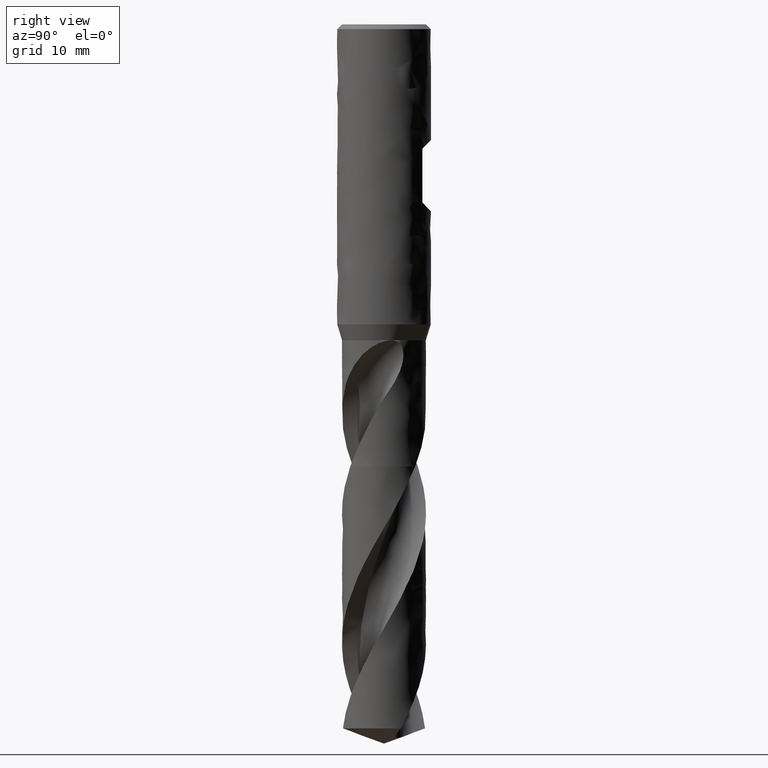
[diagram: clean part render]
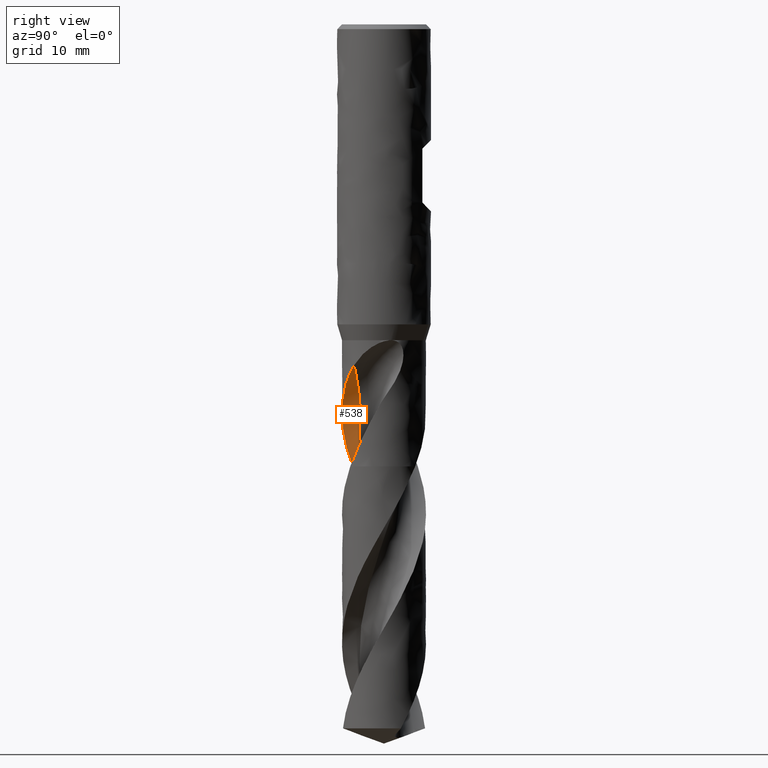
[diagram: same view with one face highlighted and labeled with its STEP entity id]
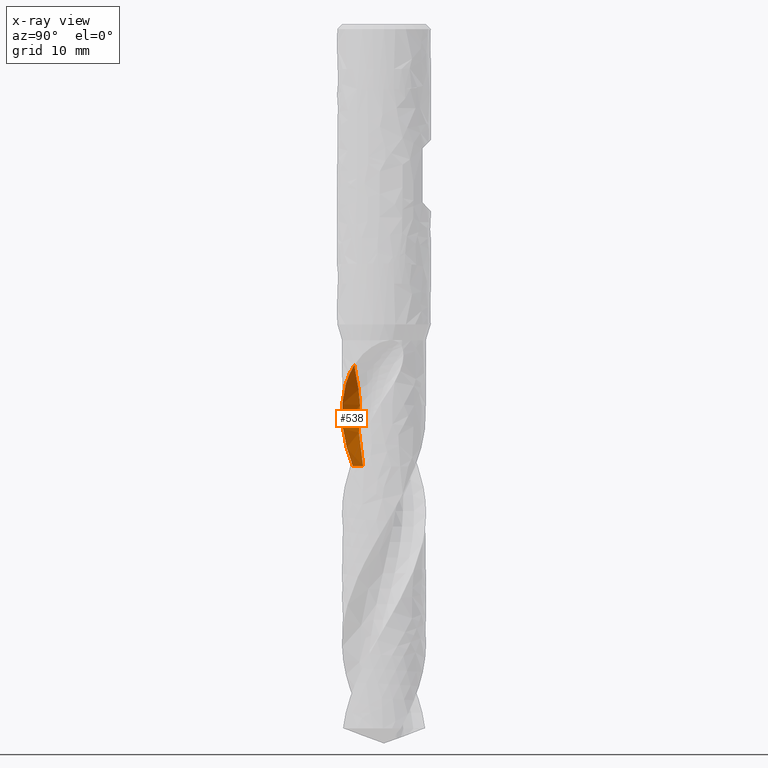
[diagram: x-ray of the same camera — body ghosted, the highlighted face saturated]
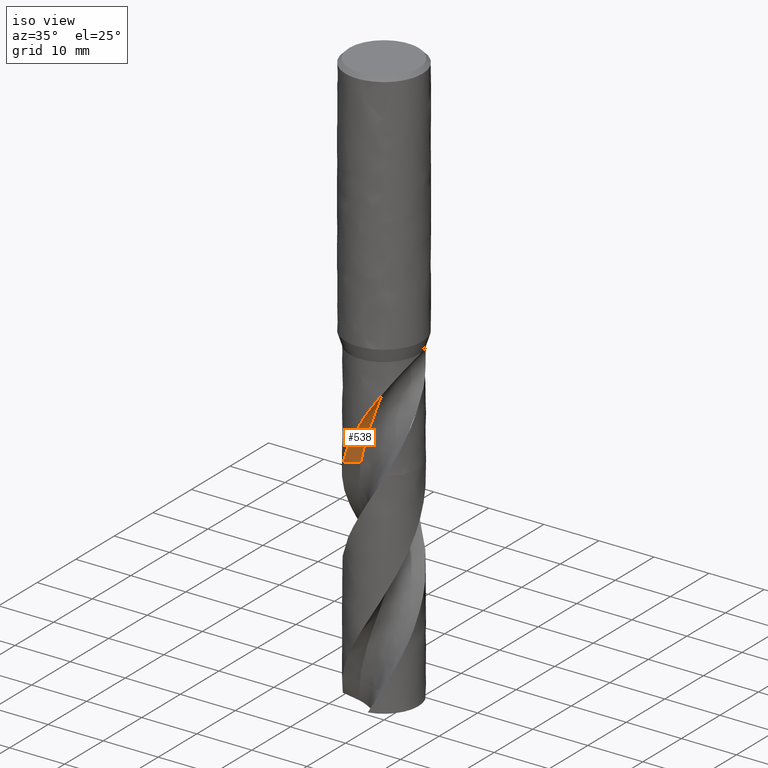
[diagram: same view with one face highlighted and labeled with its STEP entity id]
A machine part, right view. The second image highlights one B-rep face of the part: STEP entity #538.
The next image is the same camera in x-ray: the body ghosted, the highlighted face saturated — about 0% of this face is hidden behind the body in this view.
A second angle (iso view) of the same face is appended — the face is thin or edge-on in the first view.
In plain terms, the highlighted face is a freeform B-spline surface patch.
Its self-contained STEP definition (entity closure, byte-faithful):
#538 = ADVANCED_FACE('', (#539), #697, .T.);
#539 = FACE_OUTER_BOUND('', #540, .T.);
#540 = EDGE_LOOP('', (#541, #551, #573));
#541 = ORIENTED_EDGE('', *, *, #542, .T.);
#542 = EDGE_CURVE('', #543, #545, #547, .T.);
#543 = VERTEX_POINT('', #544);
#544 = CARTESIAN_POINT('', (-4.18466820123788, -4.64231106729703, -65.75));
#545 = VERTEX_POINT('', #546);
#546 = CARTESIAN_POINT('', (-2.0922272303415, -3.10219535097951, -65.75));
#547 = LINE('', #548, #549);
#548 = CARTESIAN_POINT('', (-4.18466820123788, -4.64231106729703, -65.75));
#549 = VECTOR('', #550, 2.59812733258669);
#550 = DIRECTION('', (2.09244097089639, 1.54011571631752, 0.));
#551 = ORIENTED_EDGE('', *, *, #552, .T.);
#552 = EDGE_CURVE('', #545, #553, #555, .T.);
#553 = VERTEX_POINT('', #554);
#554 = CARTESIAN_POINT('', (4.4135304005075, -4.42529653286603, -50.6848049484776));
#555 = (
   BOUNDED_CURVE ()
   B_SPLINE_CURVE (3, (#556, #557, #558, #559, #560, #561, #562, #563, #564, #565, #566, #567, #568, #569, #570, #571, #572), .UNSPECIFIED., .F., .U.)
   B_SPLINE_CURVE_WITH_KNOTS ((4, 1, 1, 1, 1, 1, 1, 1, 1, 1, 1, 1, 1, 1, 4), (41.3, 41.5869230769231, 42.7421153846154, 43.8973076923077, 45.0525, 46.2076923076923, 47.3628846153846, 48.5180769230769, 49.6732692307692, 50.8284615384615, 51.9836538461539, 53.1388461538462, 54.2940384615385, 55.4492307692308, 56.3651950515223), .UNSPECIFIED.)
   CURVE ()
   GEOMETRIC_REPRESENTATION_ITEM ()
   RATIONAL_B_SPLINE_CURVE ((1., 1., 1., 1., 1., 1., 1., 1., 1., 1., 1., 1., 1., 1., 1., 1., 1.))
   REPRESENTATION_ITEM ('')
);
#556 = CARTESIAN_POINT('', (-2.0922272303415, -3.10219535097951, -65.75));
#557 = CARTESIAN_POINT('', (-2.06554942423908, -3.12115905386303, -65.654358974359));
#558 = CARTESIAN_POINT('', (-1.93018815021352, -3.21478000189195, -65.1736538461538));
#559 = CARTESIAN_POINT('', (-1.6752455807374, -3.36780012574401, -64.3078846153846));
#560 = CARTESIAN_POINT('', (-1.31441417489896, -3.53469071851344, -63.1526923076923));
#561 = CARTESIAN_POINT('', (-0.937988385072447, -3.66812183037059, -61.9975));
#562 = CARTESIAN_POINT('', (-0.544360902624704, -3.74196568886855, -60.8423076923077));
#563 = CARTESIAN_POINT('', (-0.14496137939572, -3.74733730855098, -59.6871153846154));
#564 = CARTESIAN_POINT('', (0.248979347820483, -3.6851582318711, -58.5319230769231));
#565 = CARTESIAN_POINT('', (0.619532370399151, -3.56002242035592, -57.3767307692308));
#566 = CARTESIAN_POINT('', (1.01183235132242, -3.57037772915943, -56.2215384615385));
#567 = CARTESIAN_POINT('', (1.46817288082459, -3.66875958628856, -55.0663461538462));
#568 = CARTESIAN_POINT('', (2.02648235005531, -3.84284851864956, -53.9111538461538));
#569 = CARTESIAN_POINT('', (2.7199997199487, -4.0602009164862, -52.7559615384615));
#570 = CARTESIAN_POINT('', (3.51642075924345, -4.26872806181493, -51.6805119059028));
#571 = CARTESIAN_POINT('', (4.1247021756337, -4.38275614506257, -50.9901263759082));
#572 = CARTESIAN_POINT('', (4.4135304005075, -4.42529653286603, -50.6848049484776));
#573 = ORIENTED_EDGE('', *, *, #574, .T.);
#574 = EDGE_CURVE('', #553, #543, #575, .T.);
#575 = B_SPLINE_CURVE_WITH_KNOTS('', 3, (#576, #577, #578, #579, #580, #581, #582, #583, #584, #585, #586, #587, #588, #589, #590, #591, #592, #593, #594, #595, #596, #597, #598, #599, #600, #601, #602, #603, #604, #605, #606, #607, #608, #609, #610, #611, #612, #613, #614, #615, #616, #617, #618, #619, #620, #621, #622, #623, #624, #625, #626, #627, #628, #629, #630, #631, #632, #633, #634, #635, #636, #637, #638, #639, #640, #641, #642, #643, #644, #645, #646, #647, #648, #649, #650, #651, #652, #653, #654, #655, #656, #657, #658, #659, #660, #661, #662, #663, #664, #665, #666, #667, #668, #669, #670, #671, #672, #673, #674, #675, #676, #677, #678, #679, #680, #681, #682, #683, #684, #685, #686, #687, #688, #689, #690, #691, #692, #693, #694, #695, #696), .UNSPECIFIED., .F., .U., (4, 3, 3, 3, 3, 3, 3, 3, 3, 3, 3, 3, 3, 3, 3, 3, 3, 3, 3, 3, 3, 3, 3, 3, 3, 3, 3, 3, 3, 3, 3, 3, 3, 3, 3, 3, 3, 3, 3, 3, 4), (0., 0.442094217102409, 0.884221782139149, 1.32638450955813, 1.76859380647292, 2.21085888108049, 2.65318125785681, 3.09556405156931, 3.53801581026176, 3.98053660197396, 4.42312691282272, 4.86580216289845, 5.30856016175191, 5.60388811504777, 6.26790024671321, 6.71082243623732, 6.90778230081466, 7.35080074715382, 7.79393210363038, 8.08941287020916, 8.22075822196089, 8.5162093299469, 8.5745918552543, 8.87030653031445, 9.16599125973936, 9.46169405667645, 9.59309694629466, 10.2589326032213, 10.9245729907842, 11.5901046126912, 12.2556287494888, 12.9211310634944, 13.3646828253678, 13.6603350629814, 14.3257540164983, 14.7692841419949, 15.2127812983217, 15.8780679946527, 16.3215260503626, 17.3194158393411, 17.8353046004148), .UNSPECIFIED.);
#576 = CARTESIAN_POINT('', (4.4135304005075, -4.42529653286603, -50.6848049484776));
#577 = CARTESIAN_POINT('', (4.34617912555985, -4.49246873190098, -50.7973574595573));
#578 = CARTESIAN_POINT('', (4.27763464695008, -4.55776299801299, -50.9103386371833));
#579 = CARTESIAN_POINT('', (4.20803156785796, -4.62114383285252, -51.0237169749138));
#580 = CARTESIAN_POINT('', (4.13842323848474, -4.68452944861846, -51.1371038649692));
#581 = CARTESIAN_POINT('', (4.06774020091075, -4.74601580462784, -51.2509136801843));
#582 = CARTESIAN_POINT('', (3.99612027712714, -4.80557205031131, -51.3651208724181));
#583 = CARTESIAN_POINT('', (3.92449465741472, -4.86513303249991, -51.4793371475438));
#584 = CARTESIAN_POINT('', (3.85191729997999, -4.92277581902773, -51.5939769480847));
#585 = CARTESIAN_POINT('', (3.77852748705237, -4.97847667761834, -51.7090180155901));
#586 = CARTESIAN_POINT('', (3.70512994455738, -5.03418340273894, -51.8240711994594));
#587 = CARTESIAN_POINT('', (3.63090218520284, -5.0879613905037, -51.9395477224046));
#588 = CARTESIAN_POINT('', (3.55597279838317, -5.13980130522173, -52.0554178385662));
#589 = CARTESIAN_POINT('', (3.48103396040914, -5.19164775872322, -52.171302569906));
#590 = CARTESIAN_POINT('', (3.40537799682252, -5.24156620003254, -52.2876043916214));
#591 = CARTESIAN_POINT('', (3.32913546550851, -5.28955168726929, -52.4042989697678));
#592 = CARTESIAN_POINT('', (3.25288305581467, -5.33754339175594, -52.5210086674722));
#593 = CARTESIAN_POINT('', (3.17602888829222, -5.38361101801696, -52.6381338599589));
#594 = CARTESIAN_POINT('', (3.09870795797394, -5.42775358607859, -52.7556570263625));
#595 = CARTESIAN_POINT('', (3.02137646636833, -5.47190218358583, -52.873196245288));
#596 = CARTESIAN_POINT('', (2.94356414201164, -5.51413341235659, -52.9911559085311));
#597 = CARTESIAN_POINT('', (2.86539195122075, -5.55446027673971, -53.1095095262934));
#598 = CARTESIAN_POINT('', (2.78720757382665, -5.59479342785331, -53.2278815947164));
#599 = CARTESIAN_POINT('', (2.70864901034597, -5.63322890987766, -53.3466689470811));
#600 = CARTESIAN_POINT('', (2.62983824655711, -5.66978401678101, -53.465849877604));
#601 = CARTESIAN_POINT('', (2.55101518641073, -5.70634482715229, -53.5850494031926));
#602 = CARTESIAN_POINT('', (2.47192605213601, -5.74103099839129, -53.7046631042099));
#603 = CARTESIAN_POINT('', (2.39269641735498, -5.77386385831677, -53.8246754487749));
#604 = CARTESIAN_POINT('', (2.31345433575584, -5.80670187621927, -53.9447066470406));
#605 = CARTESIAN_POINT('', (2.23406229202775, -5.83769014876137, -54.0651592787792));
#606 = CARTESIAN_POINT('', (2.15462937601526, -5.86686221518897, -54.1860084983345));
#607 = CARTESIAN_POINT('', (2.07518121572308, -5.89603988014124, -54.3068809105332));
#608 = CARTESIAN_POINT('', (1.99567832828501, -5.92340573742748, -54.4281683514472));
#609 = CARTESIAN_POINT('', (1.91622667999673, -5.94899784088621, -54.549848120355));
#610 = CARTESIAN_POINT('', (1.83676017990279, -5.97459472824754, -54.6715506347227));
#611 = CARTESIAN_POINT('', (1.75733262411586, -5.99842108076966, -54.7936639640027));
#612 = CARTESIAN_POINT('', (1.67805371878272, -6.02051789440739, -54.916171977126));
#613 = CARTESIAN_POINT('', (1.62517319056595, -6.03525688673025, -54.9978871372626));
#614 = CARTESIAN_POINT('', (1.57235481961031, -6.0492276082957, -55.0797848331032));
#615 = CARTESIAN_POINT('', (1.51963212582465, -6.06244325352094, -55.1618617472544));
#616 = CARTESIAN_POINT('', (1.40109099926666, -6.09215716532446, -55.3464025809881));
#617 = CARTESIAN_POINT('', (1.28300751556702, -6.11805860980518, -55.5318909072946));
#618 = CARTESIAN_POINT('', (1.16573125996009, -6.14032333265536, -55.7182797388877));
#619 = CARTESIAN_POINT('', (1.08750338815552, -6.15517477786799, -55.8426084152103));
#620 = CARTESIAN_POINT('', (1.00962092598359, -6.16841137913687, -55.9673584960195));
#621 = CARTESIAN_POINT('', (0.93218115997628, -6.18009209356831, -56.092516111286));
#622 = CARTESIAN_POINT('', (0.897745030591817, -6.18528630597627, -56.14817154589));
#623 = CARTESIAN_POINT('', (0.86339512388465, -6.19017312790374, -56.2039099749167));
#624 = CARTESIAN_POINT('', (0.829139158709331, -6.19475812727945, -56.2597298717377));
#625 = CARTESIAN_POINT('', (0.752087803589929, -6.20507108776127, -56.3852846085748));
#626 = CARTESIAN_POINT('', (0.675499805334314, -6.21385868935194, -56.5112591341371));
#627 = CARTESIAN_POINT('', (0.599433516883806, -6.22118794595026, -56.6376215580651));
#628 = CARTESIAN_POINT('', (0.523347841757299, -6.22851907052354, -56.7640161874209));
#629 = CARTESIAN_POINT('', (0.447774345256118, -6.23439160233685, -56.890813449294));
#630 = CARTESIAN_POINT('', (0.372804706395692, -6.2388714244557, -57.0180056743705));
#631 = CARTESIAN_POINT('', (0.322814819566763, -6.24185857771053, -57.1028176733842));
#632 = CARTESIAN_POINT('', (0.273090974146482, -6.24422667363989, -57.1878111430018));
#633 = CARTESIAN_POINT('', (0.223671342460323, -6.24599640814514, -57.2729906891983));
#634 = CARTESIAN_POINT('', (0.201703621913174, -6.24678307999451, -57.3108541941118));
#635 = CARTESIAN_POINT('', (0.17979579966973, -6.24745155515834, -57.3487551581615));
#636 = CARTESIAN_POINT('', (0.157951837608045, -6.24800377856769, -57.3866943328195));
#637 = CARTESIAN_POINT('', (0.108815551414013, -6.24924596198701, -57.4720355423811));
#638 = CARTESIAN_POINT('', (0.0600040689820087, -6.24990003025336, -57.5575750045428));
#639 = CARTESIAN_POINT('', (0.0115183136429325, -6.24998938626705, -57.6432964326382));
#640 = CARTESIAN_POINT('', (0.00193730087426261, -6.25000704343465, -57.6602353890675));
#641 = CARTESIAN_POINT('', (-0.00763120005205538, -6.25000264693007, -57.6771814654213));
#642 = CARTESIAN_POINT('', (-0.0171874104151881, -6.24997636738917, -57.6941344154668));
#643 = CARTESIAN_POINT('', (-0.0655907918630004, -6.24984325828067, -57.7800031936262));
#644 = CARTESIAN_POINT('', (-0.113675977436482, -6.24914927677481, -57.8660526592271));
#645 = CARTESIAN_POINT('', (-0.161502569347646, -6.24791300516373, -57.952235261038));
#646 = CARTESIAN_POINT('', (-0.209324318084638, -6.24667685874407, -58.0384091355418));
#647 = CARTESIAN_POINT('', (-0.256889489965785, -6.24489885749461, -58.1247193875433));
#648 = CARTESIAN_POINT('', (-0.304308969505601, -6.2425872882226, -58.2110931912392));
#649 = CARTESIAN_POINT('', (-0.351731346564087, -6.24027557770453, -58.2974722727178));
#650 = CARTESIAN_POINT('', (-0.399009945596883, -6.23743049444276, -58.3839176467379));
#651 = CARTESIAN_POINT('', (-0.446303139470653, -6.23404471492615, -58.4703321239901));
#652 = CARTESIAN_POINT('', (-0.467319045977652, -6.23254015962027, -58.5087325454045));
#653 = CARTESIAN_POINT('', (-0.488340895026877, -6.23092839170638, -58.5471256708629));
#654 = CARTESIAN_POINT('', (-0.509376424638821, -6.22920826895538, -58.5855062916167));
#655 = CARTESIAN_POINT('', (-0.615966209069456, -6.220492181621, -58.7799859252618));
#656 = CARTESIAN_POINT('', (-0.722849765057147, -6.20899407018854, -58.9742001937221));
#657 = CARTESIAN_POINT('', (-0.829687900322901, -6.19468465606263, -59.1682118782836));
#658 = CARTESIAN_POINT('', (-0.936494703210342, -6.18037943845302, -59.362166665114));
#659 = CARTESIAN_POINT('', (-1.04327132076312, -6.1632632407959, -59.5559512891967));
#660 = CARTESIAN_POINT('', (-1.14972283269146, -6.14334089954219, -59.749605536905));
#661 = CARTESIAN_POINT('', (-1.2561569504401, -6.12342181359954, -59.9432281415044));
#662 = CARTESIAN_POINT('', (-1.36229947214203, -6.10069422514816, -60.1367431465137));
#663 = CARTESIAN_POINT('', (-1.46802185860786, -6.07514706181254, -60.3300947016226));
#664 = CARTESIAN_POINT('', (-1.57374305603381, -6.04960018580108, -60.5234440821428));
#665 = CARTESIAN_POINT('', (-1.67906259350352, -6.02122942902297, -60.7166615782525));
#666 = CARTESIAN_POINT('', (-1.78385353695397, -5.99002225026726, -60.9096863631159));
#667 = CARTESIAN_POINT('', (-1.88864104426915, -5.95881609480691, -61.1027048186225));
#668 = CARTESIAN_POINT('', (-1.99291212990306, -5.92476809474248, -61.2955661331603));
#669 = CARTESIAN_POINT('', (-2.0964353460717, -5.88790784912104, -61.4882696256064));
#670 = CARTESIAN_POINT('', (-2.16543270935662, -5.86334080172783, -61.6167049019304));
#671 = CARTESIAN_POINT('', (-2.23410379504634, -5.83752284086619, -61.7450827411857));
#672 = CARTESIAN_POINT('', (-2.30237441182046, -5.81047089897147, -61.8734069847538));
#673 = CARTESIAN_POINT('', (-2.34788062405435, -5.79243925567648, -61.9589423224803));
#674 = CARTESIAN_POINT('', (-2.39320975566507, -5.77385917842656, -62.044458207014));
#675 = CARTESIAN_POINT('', (-2.43834329297417, -5.75473561387557, -62.1299538361455));
#676 = CARTESIAN_POINT('', (-2.5399245000273, -5.71169456533235, -62.3223772472659));
#677 = CARTESIAN_POINT('', (-2.64054126004716, -5.66588688872819, -62.5147133651208));
#678 = CARTESIAN_POINT('', (-2.73994687251673, -5.61740074552152, -62.7069779244129));
#679 = CARTESIAN_POINT('', (-2.80620495479808, -5.58508266220328, -62.83513045698));
#680 = CARTESIAN_POINT('', (-2.87192884807009, -5.55157295315119, -62.9632653083648));
#681 = CARTESIAN_POINT('', (-2.93701953762789, -5.51692090169798, -63.0914062504689));
#682 = CARTESIAN_POINT('', (-3.00210538876351, -5.48227142605485, -63.2195376674015));
#683 = CARTESIAN_POINT('', (-3.0665534315979, -5.44648307978205, -63.347691716757));
#684 = CARTESIAN_POINT('', (-3.13032090341247, -5.40958325951814, -63.4758577301475));
#685 = CARTESIAN_POINT('', (-3.22597800076179, -5.35423012101796, -63.6681185877744));
#686 = CARTESIAN_POINT('', (-3.32011962826601, -5.2963669040228, -63.8604330525917));
#687 = CARTESIAN_POINT('', (-3.41264198061713, -5.23606481168153, -64.052739473611));
#688 = CARTESIAN_POINT('', (-3.47431431332662, -5.19586943610531, -64.1809245583813));
#689 = CARTESIAN_POINT('', (-3.53527546473371, -5.1545851033269, -64.3091169382206));
#690 = CARTESIAN_POINT('', (-3.59549510317901, -5.11223189644364, -64.4372979111039));
#691 = CARTESIAN_POINT('', (-3.73100411361824, -5.01692675510022, -64.7257366536968));
#692 = CARTESIAN_POINT('', (-3.86278068250538, -4.91618552902262, -65.0142079053568));
#693 = CARTESIAN_POINT('', (-3.99030992311444, -4.81039777123414, -65.302631054908));
#694 = CARTESIAN_POINT('', (-4.05623995132509, -4.75570764823155, -65.4517399674657));
#695 = CARTESIAN_POINT('', (-4.12105319506264, -4.6996548535285, -65.6008823714379));
#696 = CARTESIAN_POINT('', (-4.18466820123788, -4.64231106729703, -65.75));
#697 = B_SPLINE_SURFACE_WITH_KNOTS('', 3, 1, ((#698, #699), (#700, #701), (#702, #703), (#704, #705), (#706, #707), (#708, #709), (#710, #711), (#712, #713), (#714, #715), (#716, #717), (#718, #719), (#720, #721), (#722, #723), (#724, #725), (#726, #727), (#728, #729), (#730, #731)), .UNSPECIFIED., .F., .F., .U., (4, 1, 1, 1, 1, 1, 1, 1, 1, 1, 1, 1, 1, 1, 4), (2, 2), (41.2999999999987, 41.5869230769231, 42.7421153846154, 43.8973076923077, 45.0525, 46.2076923076923, 47.3628846153846, 48.5180769230769, 49.6732692307692, 50.8284615384615, 51.9836538461539, 53.1388461538462, 54.2940384615385, 55.4492307692308, 56.3651950515223), (0., 0.178782139742558), .UNSPECIFIED.);
#698 = CARTESIAN_POINT('', (-2.09222723034186, -3.10219535097925, -65.7500000000013));
#699 = CARTESIAN_POINT('', (-4.33440643845233, -4.75252407481948, -65.7500000000013));
#700 = CARTESIAN_POINT('', (-2.06554942423933, -3.12115905386286, -65.6543589743599));
#701 = CARTESIAN_POINT('', (-4.29377937230106, -4.79145033228678, -65.6543589743599));
#702 = CARTESIAN_POINT('', (-1.93018815021365, -3.21478000189187, -65.1736538461543));
#703 = CARTESIAN_POINT('', (-4.0869901988661, -4.98453831666524, -65.1736538461543));
#704 = CARTESIAN_POINT('', (-1.6752455807374, -3.36780012574401, -64.3078846153846));
#705 = CARTESIAN_POINT('', (-3.69168746962267, -5.30856478470947, -64.3078846153846));
#706 = CARTESIAN_POINT('', (-1.31441417489896, -3.53469071851344, -63.1526923076923));
#707 = CARTESIAN_POINT('', (-3.11976771873655, -5.68267257644441, -63.1526923076923));
#708 = CARTESIAN_POINT('', (-0.937988385072448, -3.66812183037059, -61.9975));
#709 = CARTESIAN_POINT('', (-2.5129553180856, -6.00377663257328, -61.9975));
#710 = CARTESIAN_POINT('', (-0.544360902624705, -3.74196568886855, -60.8423076923077));
#711 = CARTESIAN_POINT('', (-1.86197997129325, -6.22784307071773, -60.8423076923077));
#712 = CARTESIAN_POINT('', (-0.144961379395721, -3.74733730855099, -59.6871153846154));
#713 = CARTESIAN_POINT('', (-1.18405743684806, -6.33690152511992, -59.6871153846154));
#714 = CARTESIAN_POINT('', (0.248979347820482, -3.6851582318711, -58.5319230769231));
#715 = CARTESIAN_POINT('', (-0.498518767987086, -6.32970951998301, -58.5319230769231));
#716 = CARTESIAN_POINT('', (0.61953237039915, -3.56002242035592, -57.3767307692308));
#717 = CARTESIAN_POINT('', (0.162994667374837, -6.2095945915087, -57.3767307692308));
#718 = CARTESIAN_POINT('', (1.01183235132242, -3.57037772915943, -56.2215384615385));
#719 = CARTESIAN_POINT('', (0.827596041576856, -6.32535271904505, -56.2215384615385));
#720 = CARTESIAN_POINT('', (1.46817288082459, -3.66875958628856, -55.0663461538462));
#721 = CARTESIAN_POINT('', (1.57908968696976, -6.60684111890905, -55.0663461538462));
#722 = CARTESIAN_POINT('', (2.02648235005531, -3.84284851864956, -53.9111538461538));
#723 = CARTESIAN_POINT('', (2.48506326362249, -7.04259685325312, -53.9111538461538));
#724 = CARTESIAN_POINT('', (2.7199997199487, -4.06020091648621, -52.7559615384615));
#725 = CARTESIAN_POINT('', (3.61016373797989, -7.58575826532534, -52.7559615384615));
#726 = CARTESIAN_POINT('', (3.51642075924345, -4.26872806181493, -51.6805119059028));
#727 = CARTESIAN_POINT('', (4.91248237945652, -8.13965511583947, -51.6805119059028));
#728 = CARTESIAN_POINT('', (4.12470217563369, -4.38275614506257, -50.9901263759082));
#729 = CARTESIAN_POINT('', (5.91847038738326, -8.48576632850443, -50.9901263759082));
#730 = CARTESIAN_POINT('', (4.41353040050749, -4.42529653286603, -50.6848049484776));
#731 = CARTESIAN_POINT('', (6.39904321492917, -8.63037539659302, -50.6848049484776));